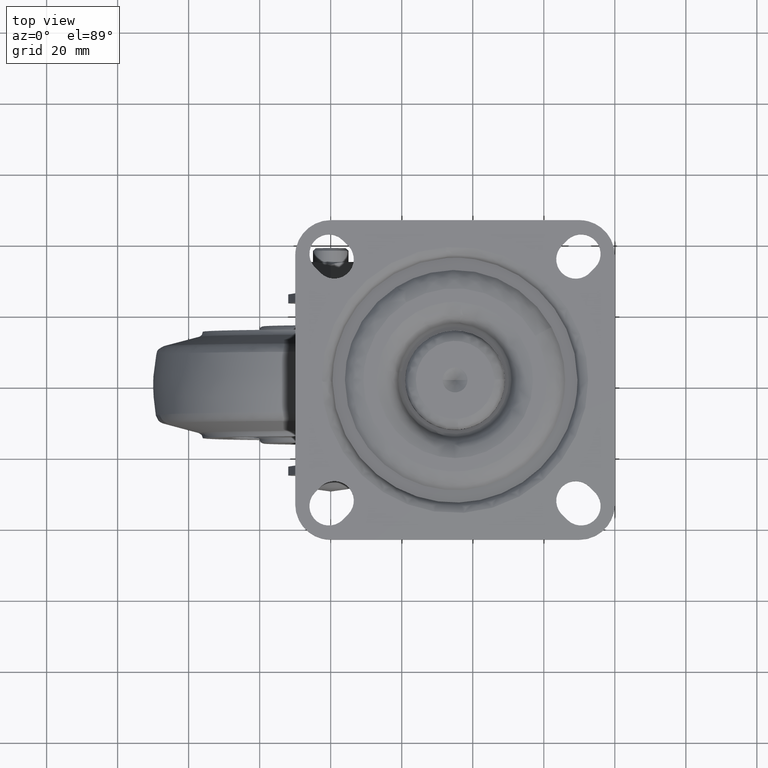
[diagram: clean part render]
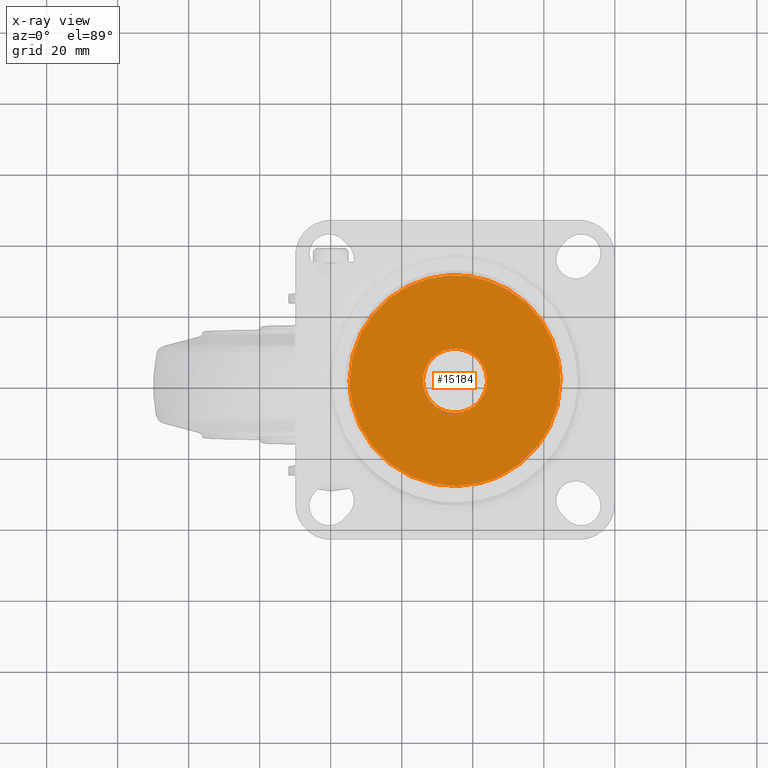
[diagram: x-ray — body ghosted, one internal face saturated and labeled with its STEP entity id]
A machine part, top view, then the same camera in x-ray: the body is ghosted and one INTERNAL B-rep face — a face not visible from any outside direction — is saturated and labeled: STEP entity #15184.
In plain terms, the highlighted face is a freeform B-spline surface patch.
Its self-contained STEP definition (entity closure, byte-faithful):
#11531=CARTESIAN_POINT('',(33.882847981149311,8.930395924413306,68.200007999999897));
#11532=VERTEX_POINT('',#11531);
#11538=CARTESIAN_POINT('',(26.0,0.0,68.200007999999897));
#11539=VERTEX_POINT('',#11538);
#11540=CARTESIAN_POINT('',(33.882847981149311,8.930395924413306,68.200007999999897));
#11541=CARTESIAN_POINT('',(26.000000000000007,7.944287401114967,68.200007999999897));
#11542=CARTESIAN_POINT('',(26.0,0.0,68.200007999999897));
#11550=(BOUNDED_CURVE()B_SPLINE_CURVE(2,(#11540,#11541,#11542),.UNSPECIFIED.,.F.,.U.)B_SPLINE_CURVE_WITH_KNOTS((3,3),(0.271473928975695,0.500000000000000),.UNSPECIFIED.)CURVE()GEOMETRIC_REPRESENTATION_ITEM()RATIONAL_B_SPLINE_CURVE((0.954005430265027,0.732265053899599,1.0))REPRESENTATION_ITEM(''));
#11551=EDGE_CURVE('',#11532,#11539,#11550,.T.);
#11553=CARTESIAN_POINT('',(35.078538819807761,-8.999657307574726,68.200007999999897));
#11554=VERTEX_POINT('',#11553);
#11555=CARTESIAN_POINT('',(26.0,0.0,68.200007999999897));
#11556=CARTESIAN_POINT('',(26.000000000000007,-9.0,68.200007999999912));
#11557=CARTESIAN_POINT('',(35.0,-9.0,68.200007999999897));
#11558=CARTESIAN_POINT('',(35.039270157708756,-9.000000000000002,68.200007999999897));
#11559=CARTESIAN_POINT('',(35.078538819807754,-8.999657307574726,68.200007999999897));
#11567=(BOUNDED_CURVE()B_SPLINE_CURVE(2,(#11555,#11556,#11557,#11558,#11559),.UNSPECIFIED.,.F.,.U.)B_SPLINE_CURVE_WITH_KNOTS((3,2,3),(0.500000000000000,0.750000000000000,0.751539894347608),.UNSPECIFIED.)CURVE()GEOMETRIC_REPRESENTATION_ITEM()RATIONAL_B_SPLINE_CURVE((1.0,0.707106781186547,1.0,0.998195901551586,0.996414028071198))REPRESENTATION_ITEM(''));
#11568=EDGE_CURVE('',#11539,#11554,#11567,.T.);
#11648=CARTESIAN_POINT('',(44.000000000000007,0.0,68.200007999999897));
#11649=VERTEX_POINT('',#11648);
#11650=CARTESIAN_POINT('',(35.078538819807761,-8.999657307574726,68.200007999999897));
#11651=CARTESIAN_POINT('',(44.000000000000007,-8.921800894715569,68.200007999999897));
#11652=CARTESIAN_POINT('',(44.000000000000007,0.0,68.200007999999897));
#11660=(BOUNDED_CURVE()B_SPLINE_CURVE(2,(#11650,#11651,#11652),.UNSPECIFIED.,.F.,.U.)B_SPLINE_CURVE_WITH_KNOTS((3,3),(0.751539894347607,1.0),.UNSPECIFIED.)CURVE()GEOMETRIC_REPRESENTATION_ITEM()RATIONAL_B_SPLINE_CURVE((0.996414028071200,0.708910879634961,1.0))REPRESENTATION_ITEM(''));
#11661=EDGE_CURVE('',#11554,#11649,#11660,.T.);
#11663=CARTESIAN_POINT('',(44.000000000000007,0.0,68.200007999999897));
#11664=CARTESIAN_POINT('',(44.0,9.0,68.200007999999912));
#11665=CARTESIAN_POINT('',(35.0,9.0,68.200007999999897));
#11666=CARTESIAN_POINT('',(34.439255652064780,8.999999999999998,68.200007999999897));
#11667=CARTESIAN_POINT('',(33.882847981149318,8.930395924413306,68.200007999999897));
#11675=(BOUNDED_CURVE()B_SPLINE_CURVE(2,(#11663,#11664,#11665,#11666,#11667),.UNSPECIFIED.,.F.,.U.)B_SPLINE_CURVE_WITH_KNOTS((3,2,3),(0.0,0.250000000000000,0.271473928975695),.UNSPECIFIED.)CURVE()GEOMETRIC_REPRESENTATION_ITEM()RATIONAL_B_SPLINE_CURVE((1.0,0.707106781186547,1.0,0.974841727286949,0.954005430265027))REPRESENTATION_ITEM(''));
#11676=EDGE_CURVE('',#11649,#11532,#11675,.T.);
#12324=CARTESIAN_POINT('',(22.492703993547931,-26.933782470479819,68.200007998827857));
#12325=VERTEX_POINT('',#12324);
#12339=CARTESIAN_POINT('',(5.303853928161902,0.0,68.200007999999897));
#12340=VERTEX_POINT('',#12339);
#12341=CARTESIAN_POINT('',(22.492703993547927,-26.933782470479819,68.200007998827857));
#12342=CARTESIAN_POINT('',(5.303853928161901,-18.951760783162712,68.200007999999897));
#12343=CARTESIAN_POINT('',(5.303853928161902,0.0,68.200007999999897));
#12351=(BOUNDED_CURVE()B_SPLINE_CURVE(2,(#12341,#12342,#12343),.UNSPECIFIED.,.F.,.U.)B_SPLINE_CURVE_WITH_KNOTS((3,3),(0.821541053909174,1.0),.UNSPECIFIED.)CURVE()GEOMETRIC_REPRESENTATION_ITEM()RATIONAL_B_SPLINE_CURVE((0.880338910502279,0.790922339413606,1.0))REPRESENTATION_ITEM(''));
#12352=EDGE_CURVE('',#12325,#12340,#12351,.T.);
#12354=CARTESIAN_POINT('',(64.696146071838101,0.0,68.200007999999897));
#12355=VERTEX_POINT('',#12354);
#12356=CARTESIAN_POINT('',(5.303853928161902,0.0,68.200007999999897));
#12357=CARTESIAN_POINT('',(5.303853928161902,29.696146071838104,68.200007999999897));
#12358=CARTESIAN_POINT('',(35.0,29.696146071838101,68.200007999999897));
#12359=CARTESIAN_POINT('',(64.696146071838101,29.696146071838104,68.200007999999897));
#12360=CARTESIAN_POINT('',(64.696146071838101,0.0,68.200007999999897));
#12368=(BOUNDED_CURVE()B_SPLINE_CURVE(2,(#12356,#12357,#12358,#12359,#12360),.UNSPECIFIED.,.F.,.U.)B_SPLINE_CURVE_WITH_KNOTS((3,2,3),(0.0,0.250000000000000,0.500000000000000),.UNSPECIFIED.)CURVE()GEOMETRIC_REPRESENTATION_ITEM()RATIONAL_B_SPLINE_CURVE((1.0,0.707106781186548,1.0,0.707106781186548,1.0))REPRESENTATION_ITEM(''));
#12369=EDGE_CURVE('',#12340,#12355,#12368,.T.);
#12371=CARTESIAN_POINT('',(42.385131216072359,-28.763187035984419,68.200007999250971));
#12372=VERTEX_POINT('',#12371);
#12373=CARTESIAN_POINT('',(64.696146071838101,0.0,68.200007999999897));
#12374=CARTESIAN_POINT('',(64.696146071838101,-23.034692064849136,68.200007999999912));
#12375=CARTESIAN_POINT('',(42.385131216072359,-28.763187035984419,68.200007999250971));
#12383=(BOUNDED_CURVE()B_SPLINE_CURVE(2,(#12373,#12374,#12375),.UNSPECIFIED.,.F.,.U.)B_SPLINE_CURVE_WITH_KNOTS((3,3),(0.500000000000000,0.707556761755374),.UNSPECIFIED.)CURVE()GEOMETRIC_REPRESENTATION_ITEM()RATIONAL_B_SPLINE_CURVE((1.0,0.756832127851886,0.917433344551831))REPRESENTATION_ITEM(''));
#12384=EDGE_CURVE('',#12355,#12372,#12383,.T.);
#12653=CARTESIAN_POINT('',(42.385131216072367,-28.763187035984419,68.200007999250971));
#12654=CARTESIAN_POINT('',(38.751495675634779,-29.696146071838104,68.200007999999897));
#12655=CARTESIAN_POINT('',(35.0,-29.696146071838101,68.200007999999897));
#12656=CARTESIAN_POINT('',(28.441303940668750,-29.696146071838108,68.200007999999897));
#12657=CARTESIAN_POINT('',(22.492703993547934,-26.933782470479819,68.200007998827857));
#12665=(BOUNDED_CURVE()B_SPLINE_CURVE(2,(#12653,#12654,#12655,#12656,#12657),.UNSPECIFIED.,.F.,.U.)B_SPLINE_CURVE_WITH_KNOTS((3,2,3),(0.707556761755373,0.750000000000000,0.821541053909173),.UNSPECIFIED.)CURVE()GEOMETRIC_REPRESENTATION_ITEM()RATIONAL_B_SPLINE_CURVE((0.917433344551830,0.950274653334660,1.0,0.916184441772943,0.880338910502280))REPRESENTATION_ITEM(''));
#12666=EDGE_CURVE('',#12372,#12325,#12665,.T.);
#15167=CARTESIAN_POINT('',(67.662789276703904,-32.662791043881413,68.200007999999897));
#15168=CARTESIAN_POINT('',(2.337207537245266,-32.662791043881413,68.200007999999897));
#15169=CARTESIAN_POINT('',(67.662789276703904,32.662792546779322,68.200007999999897));
#15170=CARTESIAN_POINT('',(2.337207537245266,32.662792546779322,68.200007999999897));
#15171=B_SPLINE_SURFACE_WITH_KNOTS('',1,1,((#15167,#15169),(#15168,#15170)),.UNSPECIFIED.,.F.,.F.,.U.,(2,2),(2,2),(0.0,65.325581739458642),(0.0,65.325583590660727),.UNSPECIFIED.);
#15172=ORIENTED_EDGE('',*,*,#12352,.F.);
#15173=ORIENTED_EDGE('',*,*,#12666,.F.);
#15174=ORIENTED_EDGE('',*,*,#12384,.F.);
#15175=ORIENTED_EDGE('',*,*,#12369,.F.);
#15176=EDGE_LOOP('',(#15172,#15173,#15174,#15175));
#15177=FACE_OUTER_BOUND('',#15176,.T.);
#15178=ORIENTED_EDGE('',*,*,#11568,.F.);
#15179=ORIENTED_EDGE('',*,*,#11551,.F.);
#15180=ORIENTED_EDGE('',*,*,#11676,.F.);
#15181=ORIENTED_EDGE('',*,*,#11661,.F.);
#15182=EDGE_LOOP('',(#15178,#15179,#15180,#15181));
#15183=FACE_BOUND('',#15182,.T.);
#15184=ADVANCED_FACE('',(#15177,#15183),#15171,.F.);